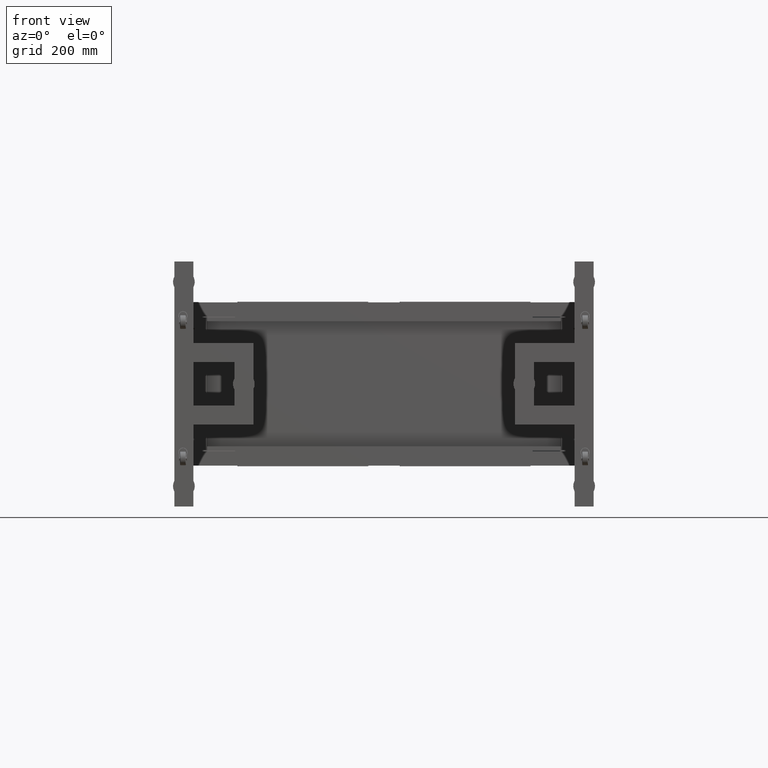
[diagram: clean part render]
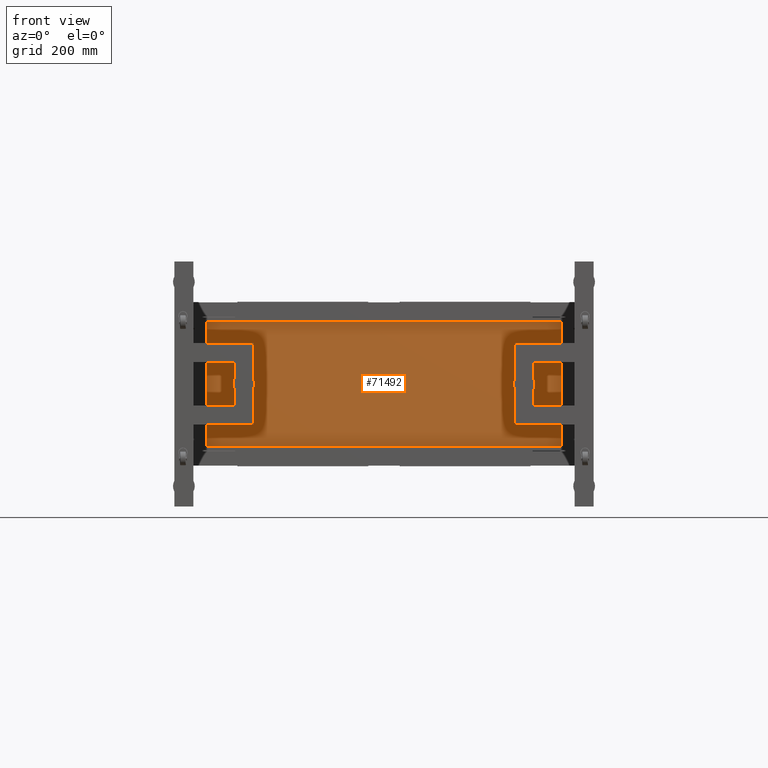
[diagram: same view with one face highlighted and labeled with its STEP entity id]
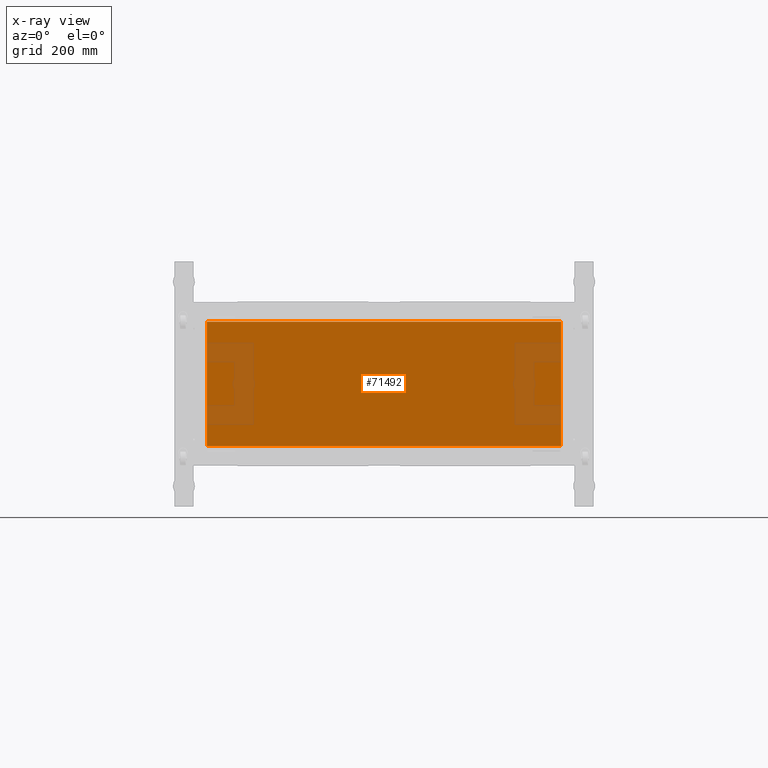
[diagram: x-ray of the same camera — body ghosted, the highlighted face saturated]
A machine part, front view. The second image highlights one B-rep face of the part: STEP entity #71492.
The next image is the same camera in x-ray: the body ghosted, the highlighted face saturated — about 12% of this face is hidden behind the body in this view.
In plain terms, the highlighted planar face has unit normal (-0, 1, -0).
Its self-contained STEP definition (entity closure, byte-faithful):
#343 = DIRECTION ( 'NONE',  ( -1.000000000000000000, -2.768038506440323819E-16, 0.000000000000000000 ) ) ;
#2113 = CARTESIAN_POINT ( 'NONE',  ( 81.82751256281473218, 555.4410804020130854, 228.4900000000001228 ) ) ;
#6896 = EDGE_LOOP ( 'NONE', ( #28861, #13419, #37285, #35039 ) ) ;
#7745 = EDGE_CURVE ( 'NONE', #43297, #48537, #29441, .T. ) ;
#10552 = VECTOR ( 'NONE', #13999, 1000.000000000000000 ) ;
#11931 = LINE ( 'NONE', #42642, #66250 ) ;
#13419 = ORIENTED_EDGE ( 'NONE', *, *, #35003, .T. ) ;
#13999 = DIRECTION ( 'NONE',  ( 1.000000000000000000, 2.768038506440323819E-16, 0.000000000000000000 ) ) ;
#16371 = LINE ( 'NONE', #57885, #67140 ) ;
#22864 = CARTESIAN_POINT ( 'NONE',  ( -1218.172487437185282, 555.4410804020124033, -228.4899999999998954 ) ) ;
#24801 = FACE_OUTER_BOUND ( 'NONE', #6896, .T. ) ;
#28043 = CARTESIAN_POINT ( 'NONE',  ( 81.82751256281494534, 555.4410804020126307, -228.4899999999998954 ) ) ;
#28861 = ORIENTED_EDGE ( 'NONE', *, *, #71750, .T. ) ;
#29441 = LINE ( 'NONE', #76157, #58927 ) ;
#30733 = LINE ( 'NONE', #44310, #10552 ) ;
#34316 = DIRECTION ( 'NONE',  ( -1.168946273182390932E-31, 1.000000000000000472E-15, 1.000000000000000000 ) ) ;
#35003 = EDGE_CURVE ( 'NONE', #36930, #48537, #11931, .T. ) ;
#35039 = ORIENTED_EDGE ( 'NONE', *, *, #66676, .T. ) ;
#35229 = AXIS2_PLACEMENT_3D ( 'NONE', #72705, #60721, #41591 ) ;
#36930 = VERTEX_POINT ( 'NONE', #2113 ) ;
#37285 = ORIENTED_EDGE ( 'NONE', *, *, #7745, .F. ) ;
#39382 = VERTEX_POINT ( 'NONE', #28043 ) ;
#41591 = DIRECTION ( 'NONE',  ( -2.768038506440324911E-31, 1.000000000000000472E-15, 1.000000000000000000 ) ) ;
#42642 = CARTESIAN_POINT ( 'NONE',  ( 230.3175125628156366, 555.4410804020130854, 228.4900000000001228 ) ) ;
#43297 = VERTEX_POINT ( 'NONE', #22864 ) ;
#44310 = CARTESIAN_POINT ( 'NONE',  ( -2166.662487437184609, 555.4410804020120622, -228.4899999999998954 ) ) ;
#48537 = VERTEX_POINT ( 'NONE', #65051 ) ;
#55112 = PLANE ( 'NONE',  #35229 ) ;
#57885 = CARTESIAN_POINT ( 'NONE',  ( 81.82751256281473218, 555.4410804020128580, 1.110223024625154773E-13 ) ) ;
#58927 = VECTOR ( 'NONE', #59011, 1000.000000000000000 ) ;
#59011 = DIRECTION ( 'NONE',  ( -1.599092233257933979E-31, 1.000000000000000472E-15, 1.000000000000000000 ) ) ;
#60721 = DIRECTION ( 'NONE',  ( -2.768038506440323819E-16, 1.000000000000000000, -1.000000000000000472E-15 ) ) ;
#65051 = CARTESIAN_POINT ( 'NONE',  ( -1218.172487437185055, 555.4410804020128580, 228.4900000000001228 ) ) ;
#66250 = VECTOR ( 'NONE', #343, 1000.000000000000000 ) ;
#66676 = EDGE_CURVE ( 'NONE', #43297, #39382, #30733, .T. ) ;
#67140 = VECTOR ( 'NONE', #34316, 1000.000000000000000 ) ;
#71492 = ADVANCED_FACE ( 'NONE', ( #24801 ), #55112, .F. ) ;
#71750 = EDGE_CURVE ( 'NONE', #39382, #36930, #16371, .T. ) ;
#72705 = CARTESIAN_POINT ( 'NONE',  ( -968.1724874371842589, 555.4410804020125170, 1.110223024625156540E-13 ) ) ;
#76157 = CARTESIAN_POINT ( 'NONE',  ( -1218.172487437185055, 555.4410804020126307, 1.110223024625154773E-13 ) ) ;